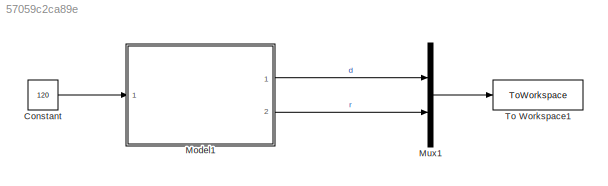
MODEL slx_57059c2ca89e
KIND model
CONFIG AbsTol = auto
CONFIG EnableMultiTasking = off
CONFIG FixedStep = auto
CONFIG MaxStep = auto
CONFIG MinStep = auto
CONFIG RelTol = 1e-3
CONFIG SampleTimeConstraint = Unconstrained
CONFIG SolverName = VariableStepAuto
CONFIG StartTime = 0.0
CONFIG StopTime = 10.0
BLOCK [Constant] Constant
  Value = 120
BLOCK [ModelReference] Model1
  ModelNameDialog = signal_converter.slx
  ModelReferenceVersion = 1.2
  Ports = [1, 2]
BLOCK [Mux] Mux1
  DisplayOption = bar
  Inputs = 2
  Ports = [2, 1]
BLOCK [ToWorkspace] To Workspace1
  FixptAsFi = on
  MaxDataPoints = inf
  Ports = [1]
  SampleTime = -1
  SaveFormat = Timeseries
  VariableName = signal_test
LINE Constant:1 -> Model1:1
LINE Model1:1 -> Mux1:1
LINE Model1:2 -> Mux1:2
LINE Mux1:1 -> To Workspace1:1
